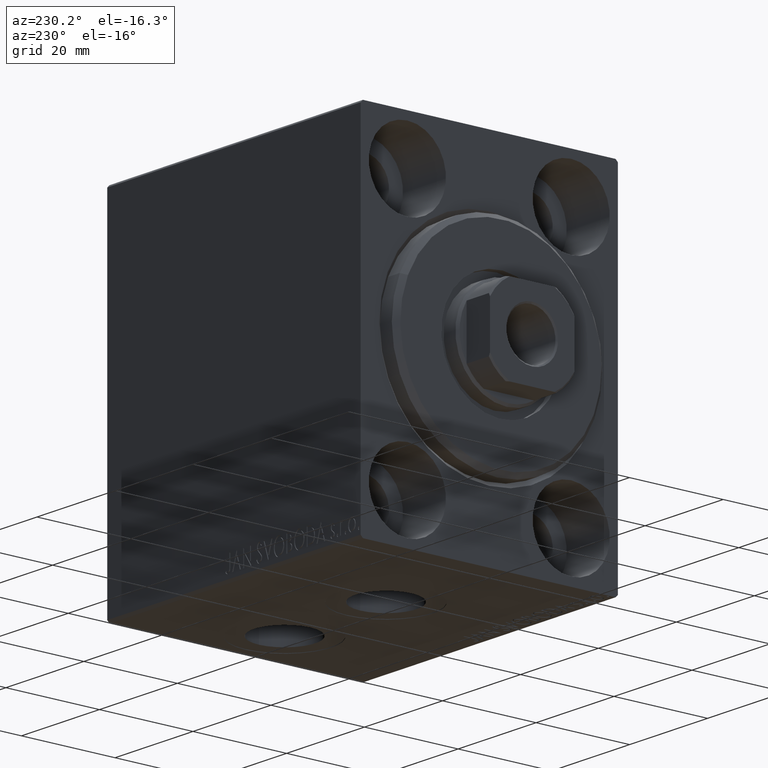
[diagram: clean part render]
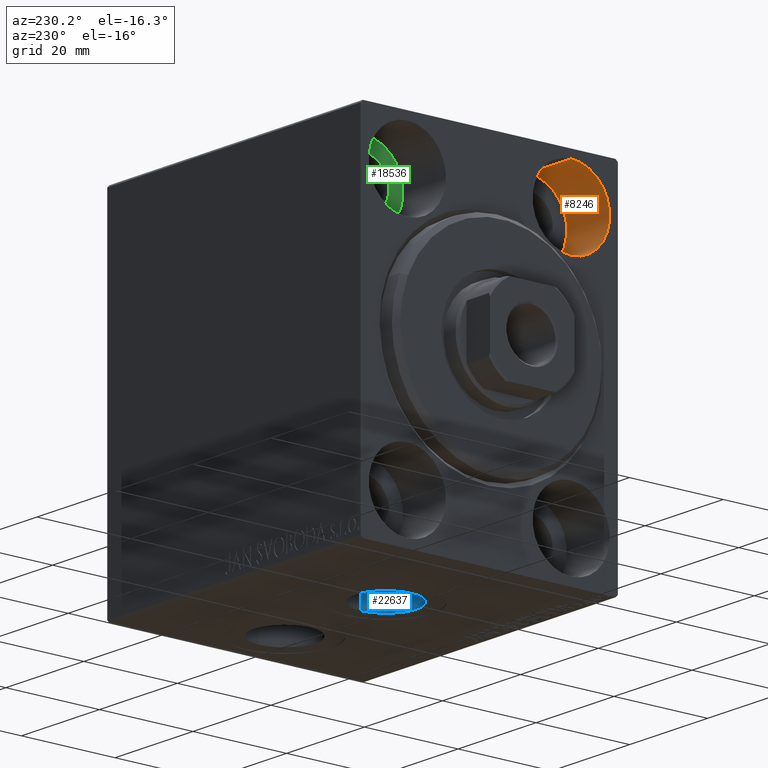
[diagram: same view with three faces highlighted in distinct colors, each labeled with its STEP entity id]
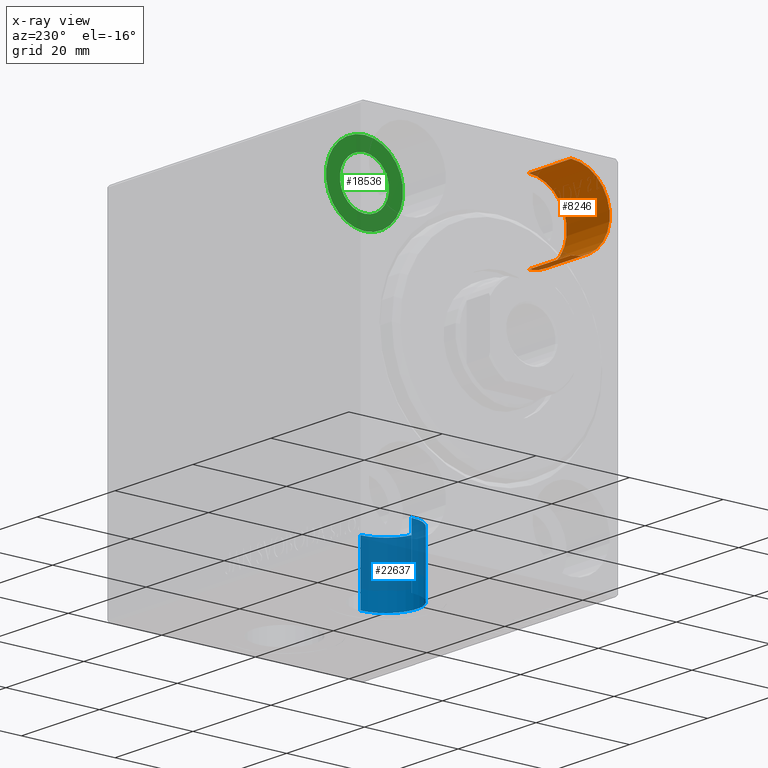
[diagram: x-ray of the same camera — body ghosted, the three highlighted faces saturated]
A machine part, auxiliary view with three faces highlighted in distinct colors.
The next image is the same camera in x-ray (body ghosted, the three faces saturated) — at least one of them is partly hidden behind the body in this view.
Their STEP definitions:

[orange] entity #8246 — the highlighted cylindrical surface (partial cylindrical patch) has radius 8.25 mm, axis along (-1, -0, -0).
#541 = AXIS2_PLACEMENT_3D ( 'NONE', #20791, #3864, #7634 ) ;
#612 = VECTOR ( 'NONE', #17390, 1000.000000000000000 ) ;
#654 = AXIS2_PLACEMENT_3D ( 'NONE', #17769, #1275, #4623 ) ;
#1275 = DIRECTION ( 'NONE',  ( -1.000000000000000000, 0.000000000000000000, 0.000000000000000000 ) ) ;
#1334 = CIRCLE ( 'NONE', #654, 8.249999999999992895 ) ;
#2422 = CARTESIAN_POINT ( 'NONE',  ( 0.000000000000000000, -17.49999999999999645, 19.25000000000000000 ) ) ;
#2914 = EDGE_LOOP ( 'NONE', ( #31389, #22251, #29498, #27278 ) ) ;
#3419 = CARTESIAN_POINT ( 'NONE',  ( 11.00000000000000000, -17.49999999999999645, 27.49999999999999645 ) ) ;
#3864 = DIRECTION ( 'NONE',  ( -1.000000000000000000, -0.000000000000000000, -0.000000000000000000 ) ) ;
#4623 = DIRECTION ( 'NONE',  ( 0.000000000000000000, 0.000000000000000000, 1.000000000000000000 ) ) ;
#5323 = EDGE_CURVE ( 'NONE', #28909, #41990, #34305, .T. ) ;
#6294 = AXIS2_PLACEMENT_3D ( 'NONE', #3419, #41237, #40585 ) ;
#7634 = DIRECTION ( 'NONE',  ( 0.000000000000000000, 0.000000000000000000, 1.000000000000000000 ) ) ;
#8246 = ADVANCED_FACE ( 'NONE', ( #28103 ), #24543, .F. ) ;
#8600 = CARTESIAN_POINT ( 'NONE',  ( 11.00000000000000000, -17.49999999999999645, 19.25000000000000000 ) ) ;
#9197 = VECTOR ( 'NONE', #12153, 1000.000000000000000 ) ;
#12153 = DIRECTION ( 'NONE',  ( -1.000000000000000000, -0.000000000000000000, -0.000000000000000000 ) ) ;
#12161 = CARTESIAN_POINT ( 'NONE',  ( 11.00000000000000000, -17.49999999999999645, 35.74999999999999289 ) ) ;
#12737 = EDGE_CURVE ( 'NONE', #17045, #38620, #42840, .T. ) ;
#17045 = VERTEX_POINT ( 'NONE', #28463 ) ;
#17390 = DIRECTION ( 'NONE',  ( -1.000000000000000000, -0.000000000000000000, -0.000000000000000000 ) ) ;
#17769 = CARTESIAN_POINT ( 'NONE',  ( 0.000000000000000000, -17.49999999999999645, 27.49999999999999645 ) ) ;
#20746 = CARTESIAN_POINT ( 'NONE',  ( 11.00000000000000000, -17.49999999999999645, 35.74999999999999289 ) ) ;
#20791 = CARTESIAN_POINT ( 'NONE',  ( 11.00000000000000000, -17.49999999999999645, 27.49999999999999645 ) ) ;
#21497 = CARTESIAN_POINT ( 'NONE',  ( 0.000000000000000000, -17.49999999999999645, 35.74999999999999289 ) ) ;
#22251 = ORIENTED_EDGE ( 'NONE', *, *, #12737, .T. ) ;
#24543 = CYLINDRICAL_SURFACE ( 'NONE', #541, 8.249999999999992895 ) ;
#27278 = ORIENTED_EDGE ( 'NONE', *, *, #5323, .F. ) ;
#28103 = FACE_OUTER_BOUND ( 'NONE', #2914, .T. ) ;
#28463 = CARTESIAN_POINT ( 'NONE',  ( 11.00000000000000000, -17.49999999999999645, 19.25000000000000000 ) ) ;
#28909 = VERTEX_POINT ( 'NONE', #12161 ) ;
#29498 = ORIENTED_EDGE ( 'NONE', *, *, #37572, .T. ) ;
#31389 = ORIENTED_EDGE ( 'NONE', *, *, #36189, .F. ) ;
#34305 = LINE ( 'NONE', #20746, #612 ) ;
#36189 = EDGE_CURVE ( 'NONE', #17045, #28909, #37559, .T. ) ;
#37559 = CIRCLE ( 'NONE', #6294, 8.249999999999992895 ) ;
#37572 = EDGE_CURVE ( 'NONE', #38620, #41990, #1334, .T. ) ;
#38620 = VERTEX_POINT ( 'NONE', #2422 ) ;
#40585 = DIRECTION ( 'NONE',  ( 0.000000000000000000, 0.000000000000000000, 1.000000000000000000 ) ) ;
#41237 = DIRECTION ( 'NONE',  ( -1.000000000000000000, 0.000000000000000000, 0.000000000000000000 ) ) ;
#41990 = VERTEX_POINT ( 'NONE', #21497 ) ;
#42840 = LINE ( 'NONE', #8600, #9197 ) ;

[blue] entity #22637 — the highlighted cylindrical surface (partial cylindrical patch) has radius 6.58 mm, axis along (-0, -0, -1).
#481 = DIRECTION ( 'NONE',  ( -1.000000000000000000, 0.000000000000000000, 0.000000000000000000 ) ) ;
#595 = CARTESIAN_POINT ( 'NONE',  ( 33.07999999999999829, -1.921168617569957634E-15, -24.49999999999999289 ) ) ;
#1374 = VERTEX_POINT ( 'NONE', #595 ) ;
#2015 = VECTOR ( 'NONE', #26903, 1000.000000000000000 ) ;
#2908 = CARTESIAN_POINT ( 'NONE',  ( 26.50000000000000000, -2.726986211408916281E-15, -24.49999999999999289 ) ) ;
#5581 = CIRCLE ( 'NONE', #14831, 6.580000000000002736 ) ;
#6386 = ORIENTED_EDGE ( 'NONE', *, *, #22290, .F. ) ;
#10131 = EDGE_CURVE ( 'NONE', #36668, #26547, #5581, .T. ) ;
#10519 = CIRCLE ( 'NONE', #12638, 6.580000000000002736 ) ;
#10889 = EDGE_CURVE ( 'NONE', #1374, #36668, #36928, .T. ) ;
#11457 = VECTOR ( 'NONE', #27708, 1000.000000000000000 ) ;
#12638 = AXIS2_PLACEMENT_3D ( 'NONE', #2908, #13140, #32744 ) ;
#13140 = DIRECTION ( 'NONE',  ( 0.000000000000000000, 0.000000000000000000, -1.000000000000000000 ) ) ;
#13328 = CARTESIAN_POINT ( 'NONE',  ( 33.07999999999999829, -1.921168617569958028E-15, -24.49999999999999289 ) ) ;
#13833 = CARTESIAN_POINT ( 'NONE',  ( 26.50000000000000000, -2.726986211408916281E-15, -37.39999999999999858 ) ) ;
#13955 = CARTESIAN_POINT ( 'NONE',  ( 19.91999999999999815, -2.726986211408916281E-15, -24.49999999999999289 ) ) ;
#14127 = LINE ( 'NONE', #41048, #11457 ) ;
#14831 = AXIS2_PLACEMENT_3D ( 'NONE', #13833, #41852, #481 ) ;
#16521 = ORIENTED_EDGE ( 'NONE', *, *, #10889, .T. ) ;
#17208 = VERTEX_POINT ( 'NONE', #13955 ) ;
#18668 = CARTESIAN_POINT ( 'NONE',  ( 19.91999999999999815, -2.726986211408916281E-15, -37.39999999999999858 ) ) ;
#20822 = ORIENTED_EDGE ( 'NONE', *, *, #10131, .T. ) ;
#22290 = EDGE_CURVE ( 'NONE', #17208, #26547, #14127, .T. ) ;
#22372 = EDGE_LOOP ( 'NONE', ( #37482, #16521, #20822, #6386 ) ) ;
#22637 = ADVANCED_FACE ( 'NONE', ( #41868 ), #34765, .F. ) ;
#24264 = AXIS2_PLACEMENT_3D ( 'NONE', #31423, #35198, #28525 ) ;
#26547 = VERTEX_POINT ( 'NONE', #18668 ) ;
#26903 = DIRECTION ( 'NONE',  ( -0.000000000000000000, -0.000000000000000000, -1.000000000000000000 ) ) ;
#27708 = DIRECTION ( 'NONE',  ( -0.000000000000000000, -0.000000000000000000, -1.000000000000000000 ) ) ;
#28525 = DIRECTION ( 'NONE',  ( -1.000000000000000000, 0.000000000000000000, 0.000000000000000000 ) ) ;
#30185 = CARTESIAN_POINT ( 'NONE',  ( 33.07999999999999829, -1.921168617569957634E-15, -37.39999999999999858 ) ) ;
#31423 = CARTESIAN_POINT ( 'NONE',  ( 26.50000000000000000, -2.726986211408916281E-15, -24.49999999999999289 ) ) ;
#32744 = DIRECTION ( 'NONE',  ( -1.000000000000000000, 0.000000000000000000, 0.000000000000000000 ) ) ;
#34447 = EDGE_CURVE ( 'NONE', #1374, #17208, #10519, .T. ) ;
#34765 = CYLINDRICAL_SURFACE ( 'NONE', #24264, 6.580000000000002736 ) ;
#35198 = DIRECTION ( 'NONE',  ( -0.000000000000000000, -0.000000000000000000, -1.000000000000000000 ) ) ;
#36668 = VERTEX_POINT ( 'NONE', #30185 ) ;
#36928 = LINE ( 'NONE', #13328, #2015 ) ;
#37482 = ORIENTED_EDGE ( 'NONE', *, *, #34447, .F. ) ;
#41048 = CARTESIAN_POINT ( 'NONE',  ( 19.91999999999999815, -2.726986211408916281E-15, -24.49999999999999289 ) ) ;
#41852 = DIRECTION ( 'NONE',  ( 0.000000000000000000, 0.000000000000000000, -1.000000000000000000 ) ) ;
#41868 = FACE_OUTER_BOUND ( 'NONE', #22372, .T. ) ;

[green] entity #18536 — the highlighted planar face has unit normal (-1, 0, 0).
#22 = AXIS2_PLACEMENT_3D ( 'NONE', #14836, #35081, #32395 ) ;
#1721 = AXIS2_PLACEMENT_3D ( 'NONE', #25890, #19442, #36128 ) ;
#2199 = CARTESIAN_POINT ( 'NONE',  ( 10.99999999999999645, 17.50000000000000355, 32.74999999999999289 ) ) ;
#4124 = FACE_OUTER_BOUND ( 'NONE', #20598, .T. ) ;
#5569 = VERTEX_POINT ( 'NONE', #2199 ) ;
#7016 = DIRECTION ( 'NONE',  ( 0.000000000000000000, 0.000000000000000000, 1.000000000000000000 ) ) ;
#8525 = EDGE_CURVE ( 'NONE', #34678, #33511, #20459, .T. ) ;
#8929 = CARTESIAN_POINT ( 'NONE',  ( 11.00000000000000000, 17.50000000000000355, 35.74999999999999289 ) ) ;
#8941 = ORIENTED_EDGE ( 'NONE', *, *, #15443, .F. ) ;
#10200 = ORIENTED_EDGE ( 'NONE', *, *, #24822, .F. ) ;
#12629 = AXIS2_PLACEMENT_3D ( 'NONE', #15515, #32869, #25754 ) ;
#12843 = EDGE_LOOP ( 'NONE', ( #8941, #10200 ) ) ;
#13695 = CARTESIAN_POINT ( 'NONE',  ( 11.00000000000000000, 17.50000000000000355, 27.49999999999999645 ) ) ;
#14137 = DIRECTION ( 'NONE',  ( -1.000000000000000000, 0.000000000000000000, 0.000000000000000000 ) ) ;
#14836 = CARTESIAN_POINT ( 'NONE',  ( 10.99999999999999645, 17.50000000000000355, 27.49999999999999645 ) ) ;
#15443 = EDGE_CURVE ( 'NONE', #5569, #23246, #29179, .T. ) ;
#15515 = CARTESIAN_POINT ( 'NONE',  ( 11.00000000000000000, 17.50000000000000355, 27.49999999999999645 ) ) ;
#17219 = ORIENTED_EDGE ( 'NONE', *, *, #8525, .T. ) ;
#17921 = CARTESIAN_POINT ( 'NONE',  ( 11.00000000000000000, 0.000000000000000000, 0.000000000000000000 ) ) ;
#18536 = ADVANCED_FACE ( 'NONE', ( #31697, #4124 ), #27718, .T. ) ;
#18725 = ORIENTED_EDGE ( 'NONE', *, *, #23597, .T. ) ;
#19442 = DIRECTION ( 'NONE',  ( -1.000000000000000000, 0.000000000000000000, 0.000000000000000000 ) ) ;
#20459 = CIRCLE ( 'NONE', #12629, 8.249999999999992895 ) ;
#20598 = EDGE_LOOP ( 'NONE', ( #18725, #17219 ) ) ;
#21670 = CIRCLE ( 'NONE', #30898, 8.249999999999992895 ) ;
#23246 = VERTEX_POINT ( 'NONE', #23553 ) ;
#23553 = CARTESIAN_POINT ( 'NONE',  ( 10.99999999999999645, 17.50000000000000355, 22.25000000000000000 ) ) ;
#23597 = EDGE_CURVE ( 'NONE', #33511, #34678, #21670, .T. ) ;
#24822 = EDGE_CURVE ( 'NONE', #23246, #5569, #38702, .T. ) ;
#25754 = DIRECTION ( 'NONE',  ( 0.000000000000000000, 0.000000000000000000, 1.000000000000000000 ) ) ;
#25890 = CARTESIAN_POINT ( 'NONE',  ( 10.99999999999999645, 17.50000000000000355, 27.49999999999999645 ) ) ;
#26383 = AXIS2_PLACEMENT_3D ( 'NONE', #17921, #14137, #31265 ) ;
#27272 = DIRECTION ( 'NONE',  ( -1.000000000000000000, 0.000000000000000000, 0.000000000000000000 ) ) ;
#27718 = PLANE ( 'NONE',  #26383 ) ;
#29179 = CIRCLE ( 'NONE', #22, 5.249999999999997335 ) ;
#30898 = AXIS2_PLACEMENT_3D ( 'NONE', #13695, #27272, #7016 ) ;
#31265 = DIRECTION ( 'NONE',  ( 0.000000000000000000, 0.000000000000000000, 1.000000000000000000 ) ) ;
#31697 = FACE_BOUND ( 'NONE', #12843, .T. ) ;
#32395 = DIRECTION ( 'NONE',  ( 0.000000000000000000, 0.000000000000000000, 1.000000000000000000 ) ) ;
#32869 = DIRECTION ( 'NONE',  ( -1.000000000000000000, 0.000000000000000000, 0.000000000000000000 ) ) ;
#33511 = VERTEX_POINT ( 'NONE', #8929 ) ;
#34678 = VERTEX_POINT ( 'NONE', #42252 ) ;
#35081 = DIRECTION ( 'NONE',  ( -1.000000000000000000, 0.000000000000000000, 0.000000000000000000 ) ) ;
#36128 = DIRECTION ( 'NONE',  ( 0.000000000000000000, 0.000000000000000000, 1.000000000000000000 ) ) ;
#38702 = CIRCLE ( 'NONE', #1721, 5.249999999999997335 ) ;
#42252 = CARTESIAN_POINT ( 'NONE',  ( 11.00000000000000000, 17.50000000000000355, 19.25000000000000000 ) ) ;